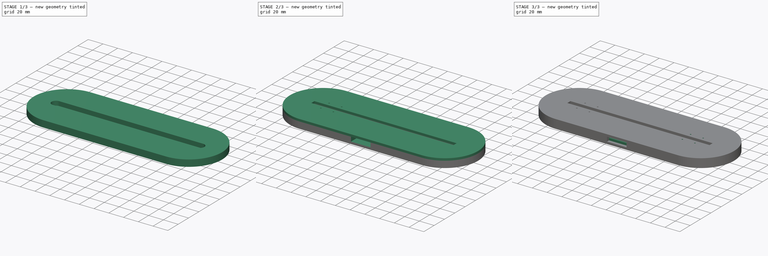
[diagram: build sequence overview — one tinted view per stage of 3, left to right]
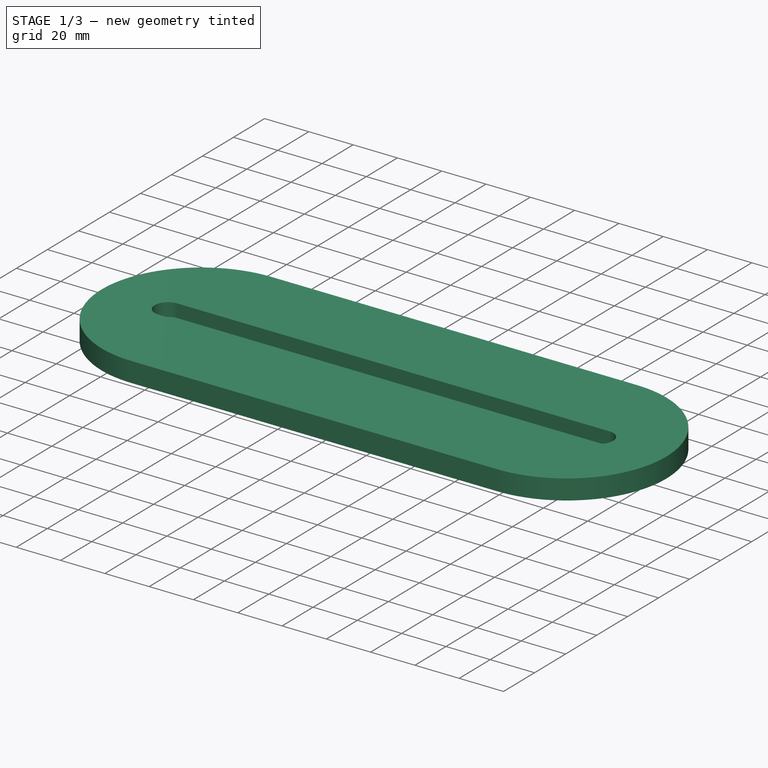
[diagram: stage 1 of 3 — iso view after this stage's code; geometry added in this stage tinted green]
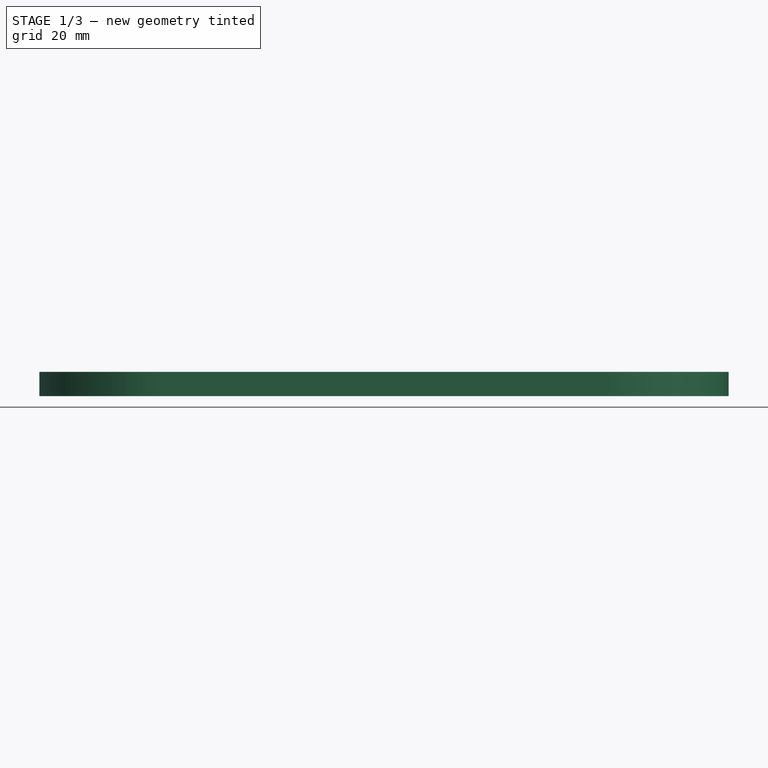
[diagram: stage 1 of 3 — front view after this stage's code; geometry added in this stage tinted green]
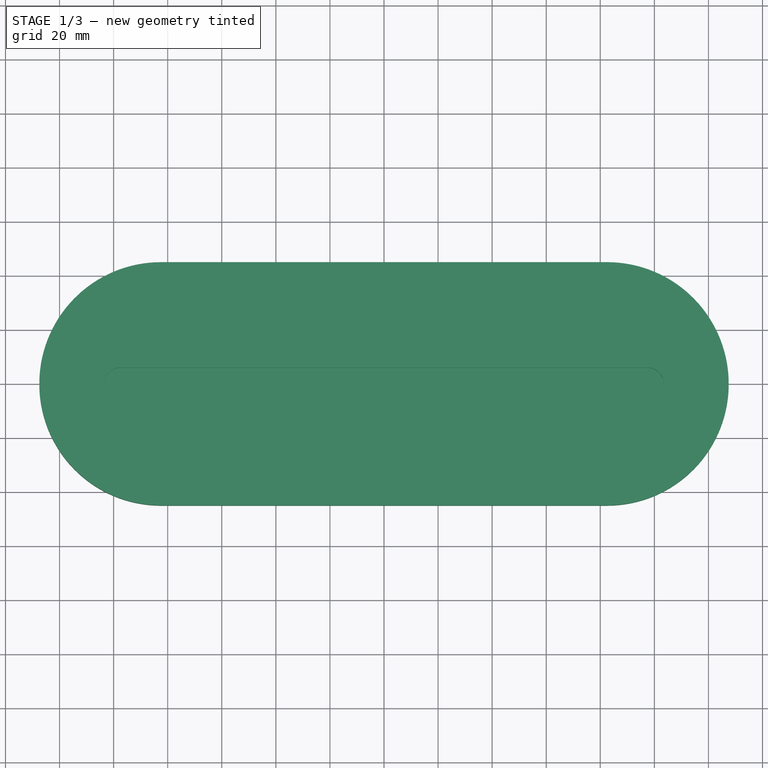
[diagram: stage 1 of 3 — top view after this stage's code; geometry added in this stage tinted green]
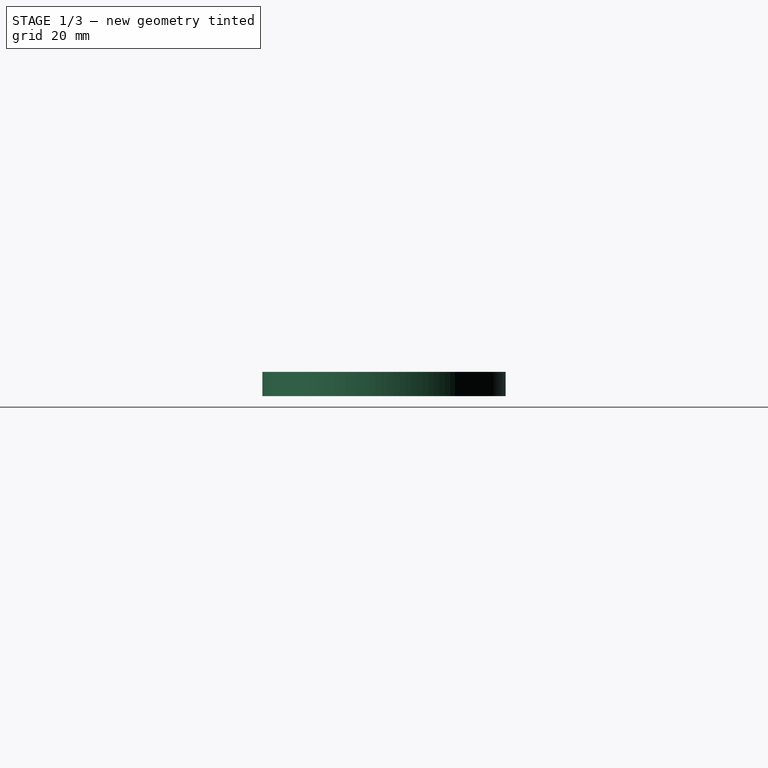
[diagram: stage 1 of 3 — right view after this stage's code; geometry added in this stage tinted green]
FCSTD DOCUMENT  (FreeCAD 0.17R13541 (Git))
Label: Acry-Base-18-WiFi-base-slots-top-holes-ledge-skate-sized-holes-larger
License: All rights reserved
LicenseURL: http://en.wikipedia.org/wiki/All_rights_reserved
objects: Sketcher::SketchObject×6, PartDesign::Pad×3, PartDesign::Pocket×3, PartDesign::Mirrored×1, PartDesign::Body×1, App::Part×1
note: 20 computed .brp shape members not serialized (recipe doc carries the construction recipe); baked Part::Feature solids carry a one-line shape summary decoded from their .brp

FEATURE [Sketcher::SketchObject] Sketch
  MapMode = 5
  Support = -> [XY_Plane001]
  sketch-geometry (7):
    g0: ArcOfCircle CenterX=-82.5 CenterY=0 CenterZ=0 NormalX=0 NormalY=0 NormalZ=1 AngleXU=0 Radius=45 StartAngle=1.5708 EndAngle=4.71239
    g1: ArcOfCircle CenterX=82.5 CenterY=0 CenterZ=0 NormalX=0 NormalY=0 NormalZ=1 AngleXU=0 Radius=45 StartAngle=4.71239 EndAngle=7.85398
    g2: LineSegment StartX=-82.5 StartY=-45 StartZ=0 EndX=82.5 EndY=-45 EndZ=0
    g3: LineSegment StartX=-82.5 StartY=45 StartZ=0 EndX=82.5 EndY=45 EndZ=0
    g4: GeomPoint X=0 Y=-45 Z=0
    g5: GeomPoint X=-127.5 Y=0 Z=0
    g6: GeomPoint X=127.5 Y=0 Z=0
  constraints (16):
    c: Tangent(g0,g3) = 1.5708
    c: Tangent(g0,g2) = -1.5708
    c: Tangent(g2,g1) = -1.5708
    c: Tangent(g3,g1) = 1.5708
    c: Horizontal(g2)
    c: Equal(g0,g1)
    c: Distance(g1,g1) = 90
    c: PointOnObject(g4,g2)
    c: PointOnObject(g4,g-2)
    c: Symmetric(g1,g0,g4)
    c: PointOnObject(g0,g-1)
    c: PointOnObject(g5,g0)
    c: PointOnObject(g6,g1)
    c: PointOnObject(g5,g-1)
    c: PointOnObject(g6,g-1)
    c: Distance(g5,g6) = 255
FEATURE [PartDesign::Pad] Pad
  Length = 9
  Length2 = 100
  Profile = -> Sketch
  Type = 0
FEATURE [Sketcher::SketchObject] Sketch001
  MapMode = 5
  Placement = pos=(0,0,9) rot=(0,0,1;0rad)
  Support = -> [Pad]
  sketch-geometry (5):
    g0: ArcOfCircle CenterX=-97.5 CenterY=0 CenterZ=0 NormalX=0 NormalY=0 NormalZ=1 AngleXU=0 Radius=6 StartAngle=1.5708 EndAngle=4.71239
    g1: ArcOfCircle CenterX=97.5 CenterY=0 CenterZ=0 NormalX=0 NormalY=0 NormalZ=1 AngleXU=0 Radius=6 StartAngle=4.71239 EndAngle=7.85398
    g2: LineSegment StartX=-97.5 StartY=-6 StartZ=0 EndX=97.5 EndY=-6 EndZ=0
    g3: LineSegment StartX=-97.5 StartY=6 StartZ=0 EndX=97.5 EndY=6 EndZ=0
    g4: GeomPoint X=0 Y=6 Z=0
  constraints (12):
    c: Tangent(g0,g3) = 1.5708
    c: Tangent(g0,g2) = -1.5708
    c: Tangent(g2,g1) = -1.5708
    c: Tangent(g3,g1) = 1.5708
    c: Horizontal(g2)
    c: Equal(g0,g1)
    c: PointOnObject(g4,g3)
    c: Symmetric(g1,g0,g4)
    c: PointOnObject(g4,g-2)
    c: Distance(g2) = 195
    c: Distance(g1,g1) = 12
    c: PointOnObject(g0,g-1)
FEATURE [PartDesign::Pocket] Pocket
  BaseFeature = -> Pad
  Length = 6
  Length2 = 100
  Profile = -> Sketch001
  Type = 0
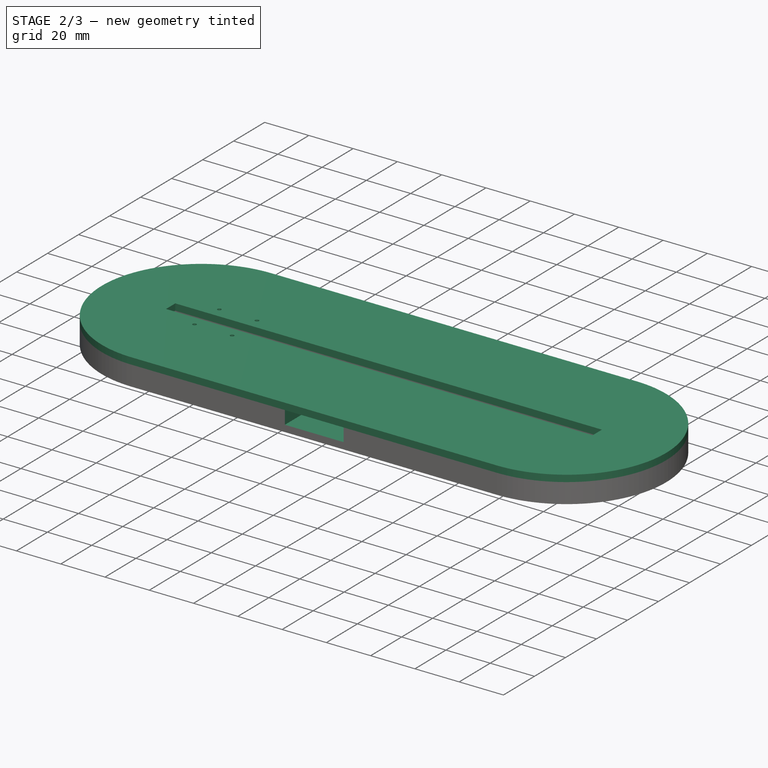
[diagram: stage 2 of 3 — iso view after this stage's code; geometry added in this stage tinted green]
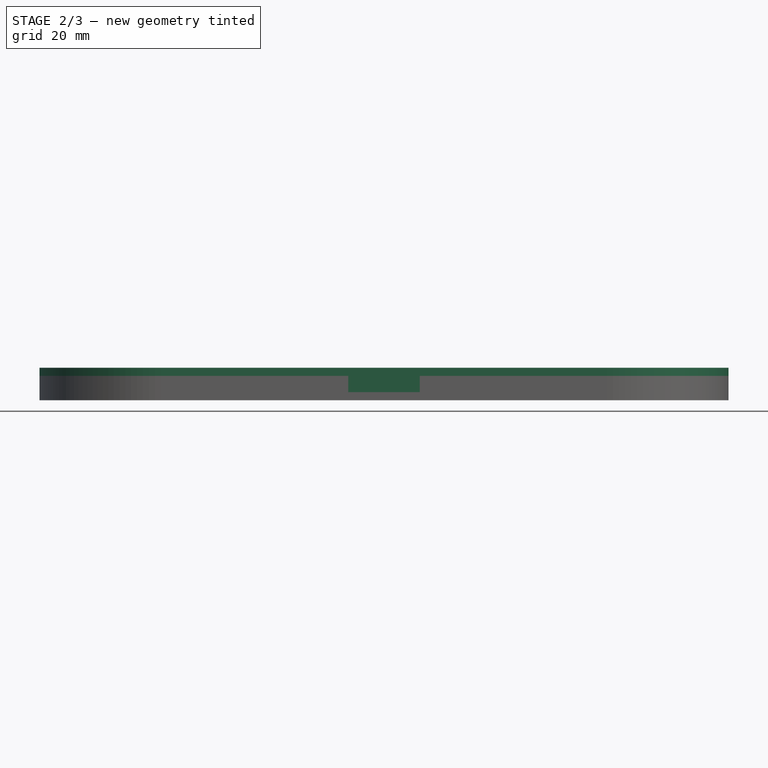
[diagram: stage 2 of 3 — front view after this stage's code; geometry added in this stage tinted green]
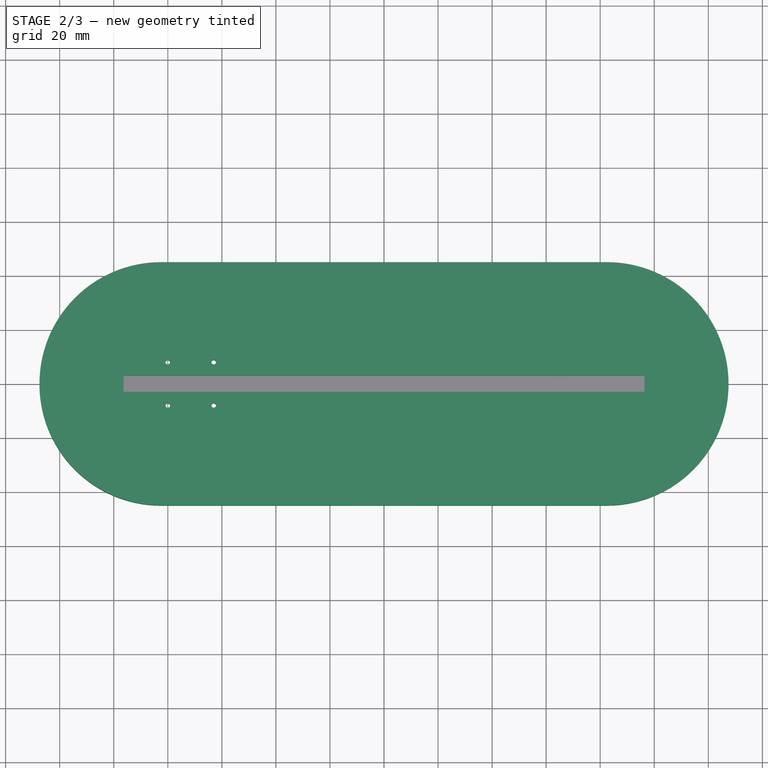
[diagram: stage 2 of 3 — top view after this stage's code; geometry added in this stage tinted green]
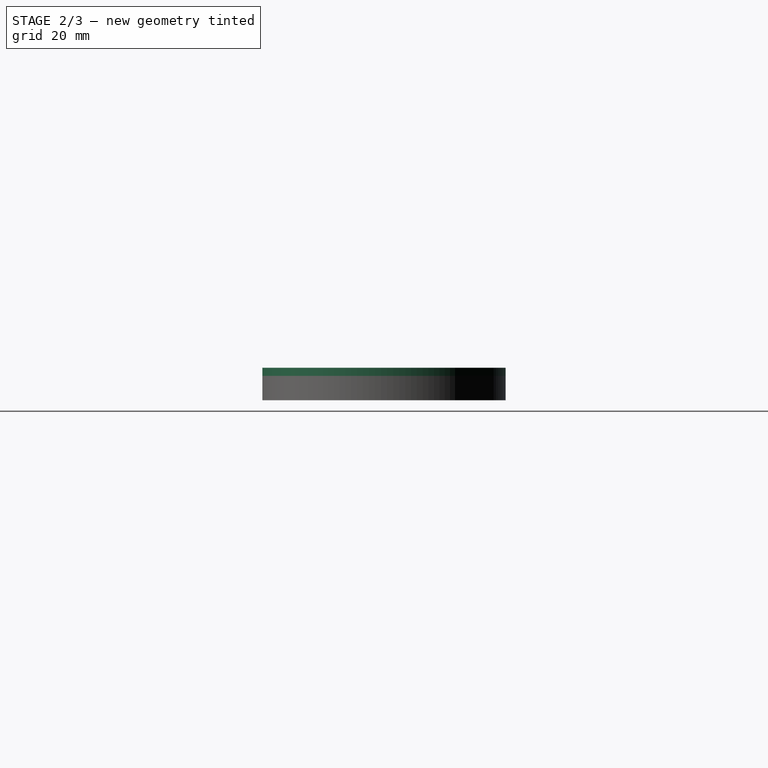
[diagram: stage 2 of 3 — right view after this stage's code; geometry added in this stage tinted green]
FEATURE [Sketcher::SketchObject] Sketch002
  ExternalGeometry = -> [Pocket]
  MapMode = 5
  Placement = pos=(0,0,9) rot=(0,0,1;0rad)
  Support = -> [Pocket]
  sketch-geometry (5):
    g0: LineSegment StartX=-13.25 StartY=-10 StartZ=0 EndX=13.25 EndY=-10 EndZ=0
    g1: LineSegment StartX=13.25 StartY=-10 StartZ=0 EndX=13.25 EndY=-45 EndZ=0
    g2: LineSegment StartX=13.25 StartY=-45 StartZ=0 EndX=-13.25 EndY=-45 EndZ=0
    g3: LineSegment StartX=-13.25 StartY=-45 StartZ=0 EndX=-13.25 EndY=-10 EndZ=0
    g4: GeomPoint X=0 Y=-10 Z=0
  constraints (14):
    c: Coincident(g0,g1)
    c: Coincident(g1,g2)
    c: Coincident(g2,g3)
    c: Coincident(g3,g0)
    c: Horizontal(g0)
    c: Horizontal(g2)
    c: Vertical(g1)
    c: Vertical(g3)
    c: Distance(g1) = 35
    c: PointOnObject(g2,g-3)
    c: Distance(g0) = 26.5
    c: PointOnObject(g4,g0)
    c: Symmetric(g0,g0,g4)
    c: PointOnObject(g4,g-2)
FEATURE [PartDesign::Pocket] Pocket001
  BaseFeature = -> Pocket
  Length = 6
  Length2 = 100
  Profile = -> Sketch002
  Type = 0
FEATURE [Sketcher::SketchObject] Sketch003
  ExternalGeometry = -> [Pocket001]
  MapMode = 5
  Placement = pos=(0,0,9) rot=(0,0,1;0rad)
  Support = -> [Pocket001]
  sketch-geometry (10):
    g0: ArcOfCircle CenterX=-82.5 CenterY=0 CenterZ=0 NormalX=0 NormalY=0 NormalZ=1 AngleXU=0 Radius=45 StartAngle=1.5708 EndAngle=4.71239
    g1: ArcOfCircle CenterX=82.5 CenterY=0 CenterZ=0 NormalX=0 NormalY=0 NormalZ=1 AngleXU=0 Radius=45 StartAngle=4.71239 EndAngle=7.85398
    g2: LineSegment StartX=-82.5 StartY=-45 StartZ=0 EndX=82.5 EndY=-45 EndZ=0
    g3: LineSegment StartX=-82.5 StartY=45 StartZ=0 EndX=82.5 EndY=45 EndZ=0
    g4: LineSegment StartX=-96.375 StartY=2.975 StartZ=0 EndX=96.375 EndY=2.975 EndZ=0
    g5: LineSegment StartX=96.375 StartY=2.975 StartZ=0 EndX=96.375 EndY=-2.975 EndZ=0
    g6: LineSegment StartX=96.375 StartY=-2.975 StartZ=0 EndX=-96.375 EndY=-2.975 EndZ=0
    g7: LineSegment StartX=-96.375 StartY=-2.975 StartZ=0 EndX=-96.375 EndY=2.975 EndZ=0
    g8: GeomPoint X=0 Y=2.975 Z=0
    g9: GeomPoint X=96.375 Y=0 Z=0
  constraints (24):
    c: Tangent(g0,g3) = 1.5708
    c: Tangent(g0,g2) = -1.5708
    c: Tangent(g2,g1) = -1.5708
    c: Tangent(g3,g1) = 1.5708
    c: Horizontal(g2)
    c: Equal(g0,g1)
    c: Coincident(g0,g-3)
    c: Coincident(g1,g-4)
    c: Coincident(g4,g5)
    c: Coincident(g5,g6)
    c: Coincident(g6,g7)
    c: Coincident(g7,g4)
    c: Horizontal(g4)
    c: Horizontal(g6)
    c: Vertical(g5)
    c: Vertical(g7)
    c: Distance(g6) = 192.75
    c: Distance(g5) = 5.95
    c: PointOnObject(g8,g4)
    c: PointOnObject(g9,g5)
    c: Symmetric(g4,g5,g9)
    c: Symmetric(g4,g4,g8)
    c: PointOnObject(g8,g-2)
    c: PointOnObject(g9,g-1)
FEATURE [PartDesign::Pad] Pad001
  BaseFeature = -> Pocket001
  Length = 3
  Length2 = 100
  Profile = -> Sketch003
  Type = 0
FEATURE [Sketcher::SketchObject] Sketch004
  MapMode = 5
  Placement = pos=(0,0,12) rot=(0,0,1;0rad)
  Support = -> [Pad001]
  sketch-geometry (5):
    g0: Circle CenterX=-80 CenterY=-8 CenterZ=0 NormalX=0 NormalY=0 NormalZ=1 AngleXU=0 Radius=0.85
    g1: GeomPoint X=-79.1787 Y=-8.21893 Z=0
    g2: Circle CenterX=-63 CenterY=-8 CenterZ=0 NormalX=0 NormalY=0 NormalZ=1 AngleXU=0 Radius=0.85
    g3: Circle CenterX=-63 CenterY=8 CenterZ=0 NormalX=0 NormalY=0 NormalZ=1 AngleXU=0 Radius=0.85
    g4: Circle CenterX=-80 CenterY=8 CenterZ=0 NormalX=0 NormalY=0 NormalZ=1 AngleXU=0 Radius=0.85
  constraints (13):
    c: Distance(g0,g1) = 0.85
    c: PointOnObject(g1,g0)
    c: Equal(g2,g0)
    c: Distance(g2,g-1) = 8
    c: Distance(g0,g-1) = 8
    c: Distance(g3,g-1) = 8
    c: Distance(g4,g-1) = 8
    c: Equal(g4,g0)
    c: Equal(g3,g0)
    c: Distance(g3,g-2) = 63
    c: Distance(g2,g-2) = 63
    c: Distance(g4,g-2) = 80
    c: Distance(g0,g-2) = 80
FEATURE [PartDesign::Pocket] Pocket002
  BaseFeature = -> Pad001
  Length = 5
  Length2 = 100
  Profile = -> Sketch004
  Type = 1
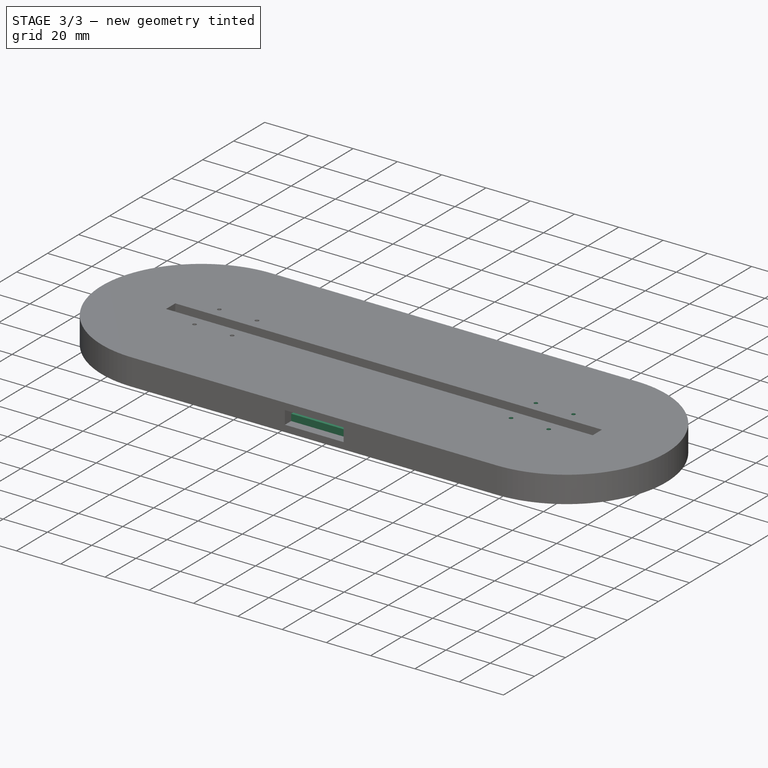
[diagram: stage 3 of 3 — iso view after this stage's code; geometry added in this stage tinted green]
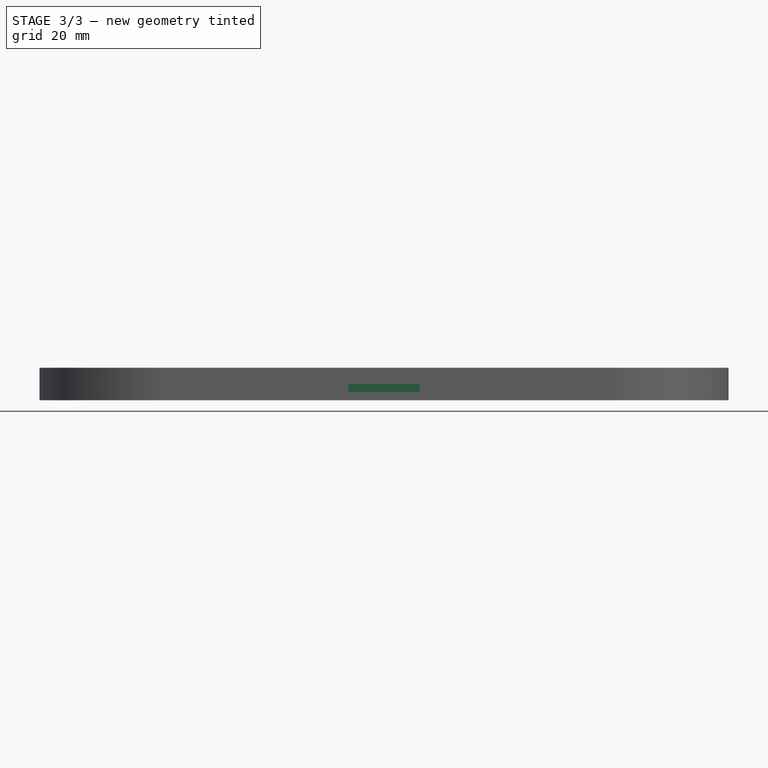
[diagram: stage 3 of 3 — front view after this stage's code; geometry added in this stage tinted green]
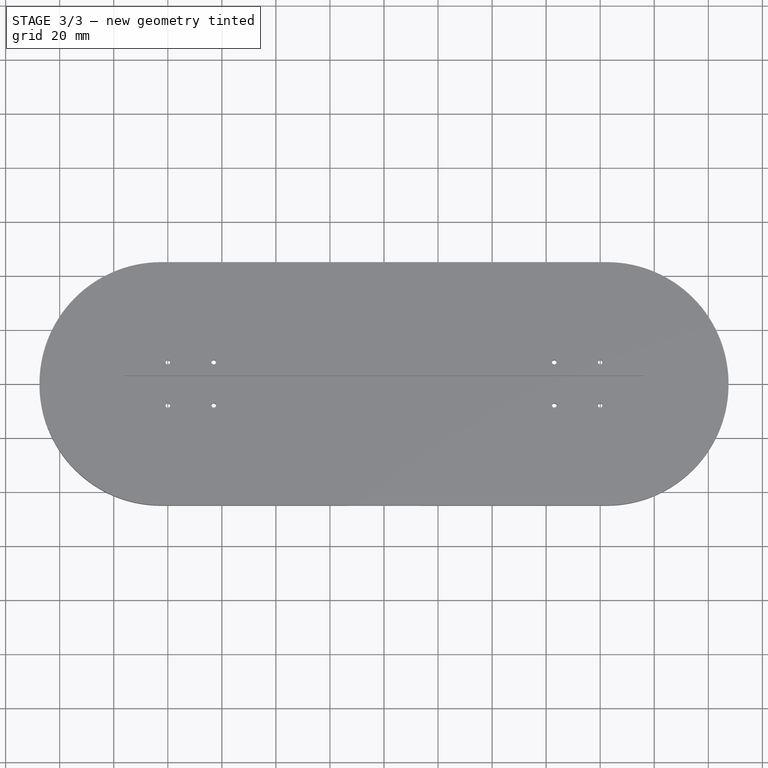
[diagram: stage 3 of 3 — top view after this stage's code; geometry added in this stage tinted green]
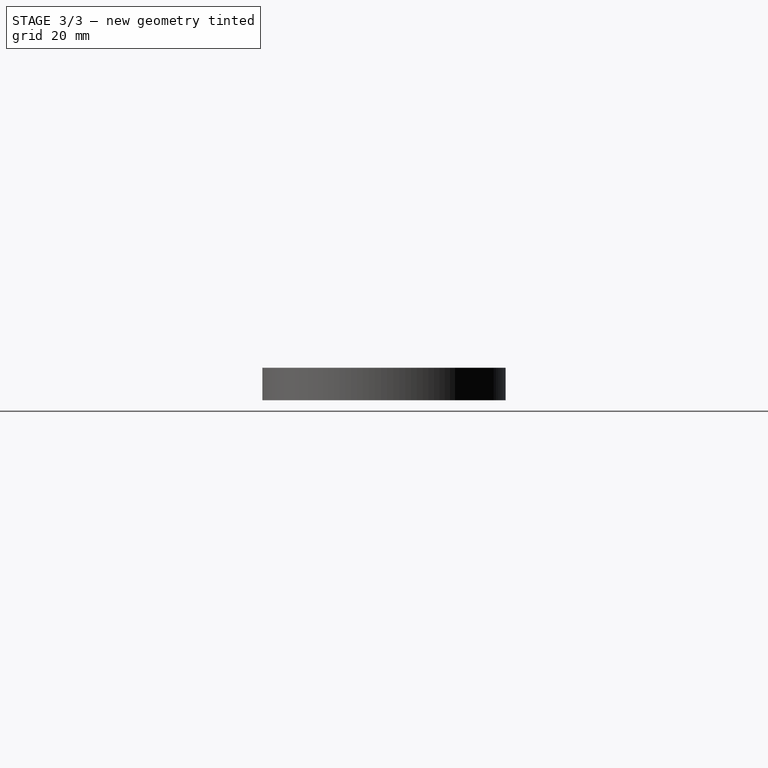
[diagram: stage 3 of 3 — right view after this stage's code; geometry added in this stage tinted green]
FEATURE [Sketcher::SketchObject] Sketch005
  ExternalGeometry = -> [Pocket002]
  MapMode = 5
  Placement = pos=(0,0,3) rot=(0,0,1;0rad)
  Support = -> [Pocket002]
  sketch-geometry (4):
    g0: LineSegment StartX=-13.25 StartY=-33.25 StartZ=0 EndX=13.25 EndY=-33.25 EndZ=0
    g1: LineSegment StartX=13.25 StartY=-33.25 StartZ=0 EndX=13.25 EndY=-41 EndZ=0
    g2: LineSegment StartX=13.25 StartY=-41 StartZ=0 EndX=-13.25 EndY=-41 EndZ=0
    g3: LineSegment StartX=-13.25 StartY=-41 StartZ=0 EndX=-13.25 EndY=-33.25 EndZ=0
  constraints (11):
    c: Coincident(g0,g1)
    c: Coincident(g1,g2)
    c: Coincident(g2,g3)
    c: Coincident(g3,g0)
    c: Horizontal(g0)
    c: Horizontal(g2)
    c: Vertical(g1)
    c: Vertical(g3)
    c: Coincident(g1,g-4)
    c: Coincident(g2,g-3)
    c: Distance(g1) = 7.75
FEATURE [PartDesign::Pad] Pad002
  BaseFeature = -> Pocket002
  Length = 3
  Length2 = 100
  Profile = -> Sketch005
  Type = 0
FEATURE [PartDesign::Mirrored] Mirrored
  BaseFeature = -> Pad002
  MirrorPlane = -> Sketch004 [V_Axis]
  Originals = -> [Pocket002]
FEATURE [PartDesign::Body] Body
  Group = -> [Sketch,Pad,Sketch001,Pocket,Sketch002,Pocket001,Sketch003,Pad001,Sketch004,Pocket002,Sketch005,Pad002,Mirrored]
  Origin = -> Origin001
  Tip = -> Mirrored
FEATURE [App::Part] Part
  Group = -> [Body]
  License = CC BY 3.0
  LicenseURL = http://creativecommons.org/licenses/by/3.0/
  Origin = -> Origin
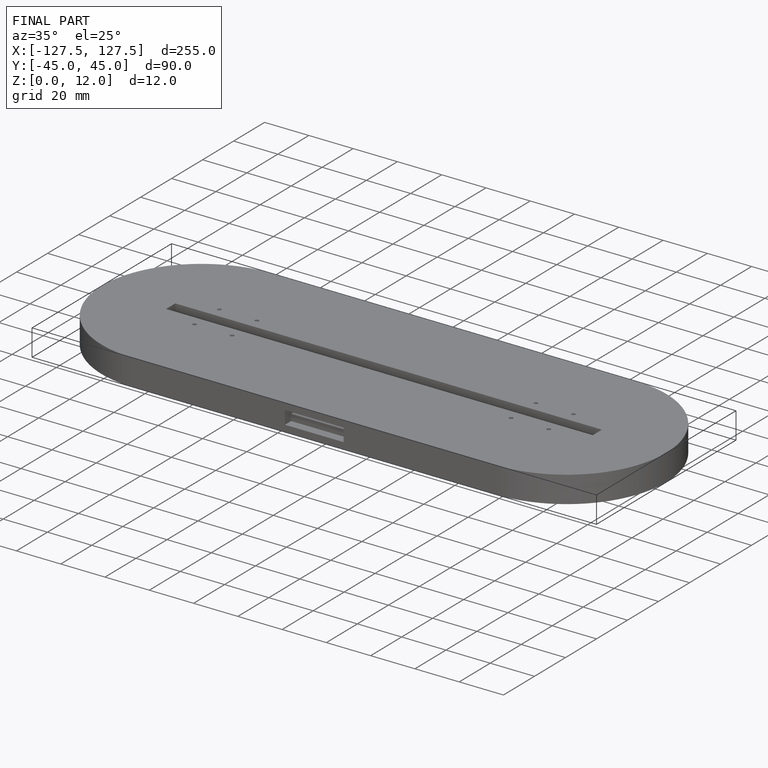
[diagram: finished part — iso view with bounding-box wireframe]
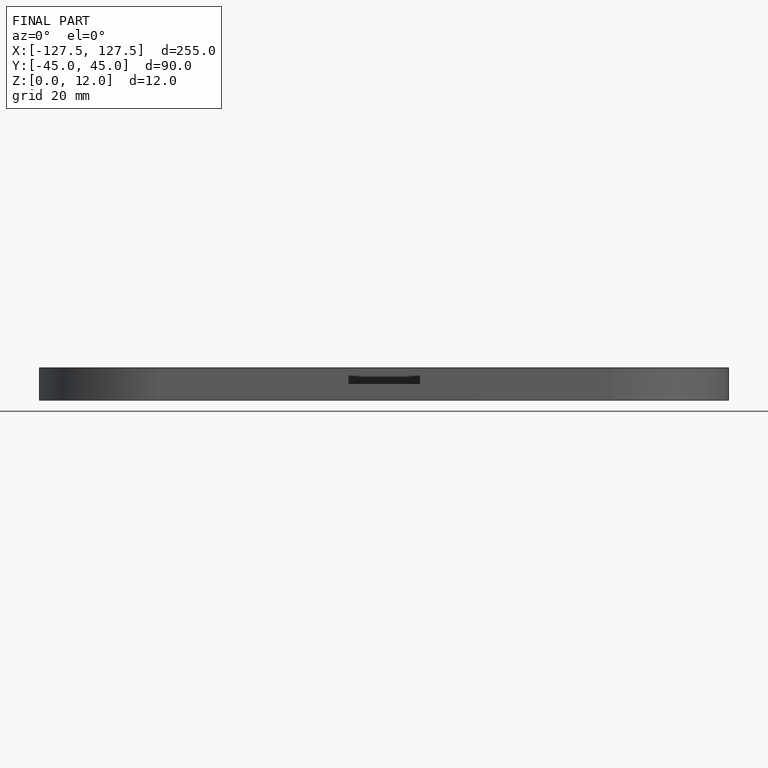
[diagram: finished part — front view with bounding-box wireframe]
